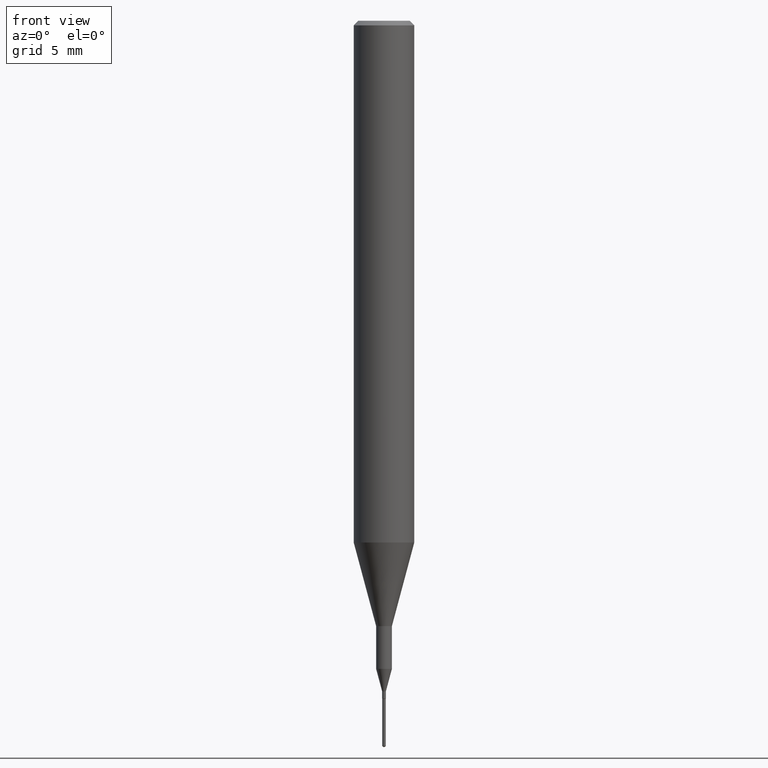
[diagram: clean part render]
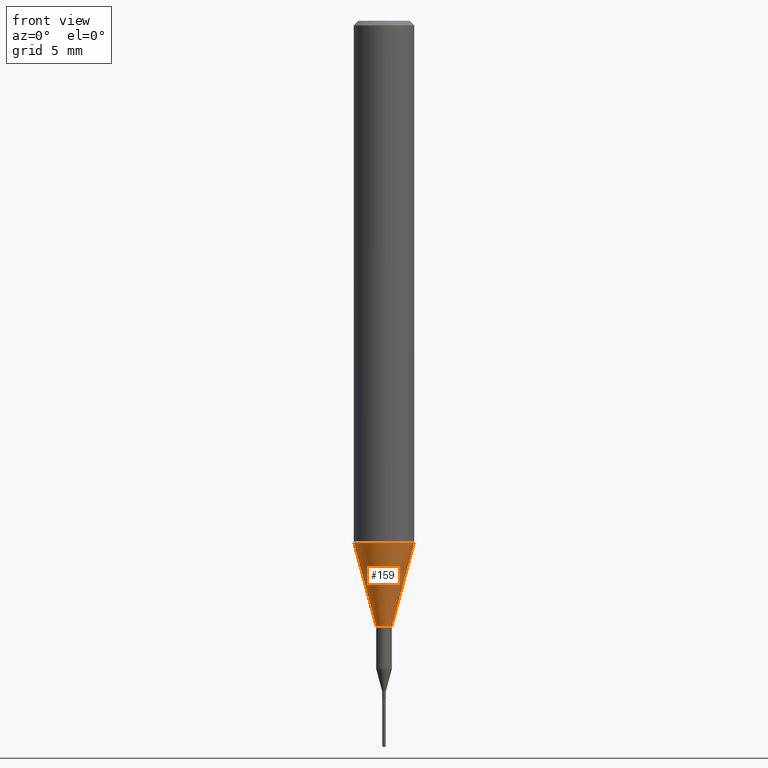
[diagram: same view with one face highlighted and labeled with its STEP entity id]
A machine part, front view. The second image highlights one B-rep face of the part: STEP entity #159.
In plain terms, the highlighted conical surface has half-angle 15 deg.
Its self-contained STEP definition (entity closure, byte-faithful):
#6 = AXIS2_PLACEMENT_3D ( 'NONE', #267, #35, #221 ) ;
#12 = EDGE_CURVE ( 'NONE', #282, #559, #17, .T. ) ;
#17 = CIRCLE ( 'NONE', #92, 0.06250000000000012490 ) ;
#35 = DIRECTION ( 'NONE',  ( -2.445468806185136597E-29, 3.491481338843145583E-15, 1.000000000000000000 ) ) ;
#36 = CARTESIAN_POINT ( 'NONE',  ( -0.01624999999999999709, -4.403123558425820763E-15, -1.250000000000000000 ) ) ;
#82 = DIRECTION ( 'NONE',  ( -2.445468806185136597E-29, 3.491481338843145583E-15, 1.000000000000000000 ) ) ;
#89 = VECTOR ( 'NONE', #366, 39.37007874015747433 ) ;
#92 = AXIS2_PLACEMENT_3D ( 'NONE', #200, #156, #340 ) ;
#99 = EDGE_CURVE ( 'NONE', #504, #389, #213, .T. ) ;
#107 = EDGE_LOOP ( 'NONE', ( #119, #253, #370, #373 ) ) ;
#111 = CARTESIAN_POINT ( 'NONE',  ( 0.01624999999999999709, -4.477824817066334148E-15, -1.250000000000000000 ) ) ;
#116 = VECTOR ( 'NONE', #139, 39.37007874015747433 ) ;
#119 = ORIENTED_EDGE ( 'NONE', *, *, #517, .F. ) ;
#139 = DIRECTION ( 'NONE',  ( 0.2588190451025214611, 1.565188264969621573E-15, 0.9659258262890682012 ) ) ;
#156 = DIRECTION ( 'NONE',  ( -2.445468806185136597E-29, 3.491481338843145583E-15, 1.000000000000000000 ) ) ;
#159 = ADVANCED_FACE ( 'NONE', ( #169 ), #269, .T. ) ;
#169 = FACE_OUTER_BOUND ( 'NONE', #107, .T. ) ;
#174 = CARTESIAN_POINT ( 'NONE',  ( -0.06250000000000012490, -3.317607122755211895E-15, -1.077392650149939346 ) ) ;
#200 = CARTESIAN_POINT ( 'NONE',  ( 2.634730117954813298E-29, -3.761696332605275695E-15, -1.077392650149939346 ) ) ;
#213 = CIRCLE ( 'NONE', #242, 0.01624999999999999709 ) ;
#221 = DIRECTION ( 'NONE',  ( 1.000000000000000000, -6.982962677686264344E-15, 0.000000000000000000 ) ) ;
#235 = CARTESIAN_POINT ( 'NONE',  ( 0.06250000000000012490, -4.198131499960668153E-15, -1.077392650149939346 ) ) ;
#242 = AXIS2_PLACEMENT_3D ( 'NONE', #583, #82, #552 ) ;
#253 = ORIENTED_EDGE ( 'NONE', *, *, #99, .T. ) ;
#267 = CARTESIAN_POINT ( 'NONE',  ( 2.634730117954813298E-29, -3.761696332605275695E-15, -1.077392650149939346 ) ) ;
#269 = CONICAL_SURFACE ( 'NONE', #6, 0.06250000000000012490, 0.2617993877991501295 ) ;
#282 = VERTEX_POINT ( 'NONE', #536 ) ;
#317 = LINE ( 'NONE', #494, #116 ) ;
#340 = DIRECTION ( 'NONE',  ( 1.000000000000000000, -6.982962677686264344E-15, 0.000000000000000000 ) ) ;
#360 = LINE ( 'NONE', #174, #89 ) ;
#366 = DIRECTION ( 'NONE',  ( -0.2588190451025214611, 5.211531920934551042E-15, 0.9659258262890682012 ) ) ;
#370 = ORIENTED_EDGE ( 'NONE', *, *, #493, .T. ) ;
#373 = ORIENTED_EDGE ( 'NONE', *, *, #12, .F. ) ;
#389 = VERTEX_POINT ( 'NONE', #111 ) ;
#493 = EDGE_CURVE ( 'NONE', #389, #559, #317, .T. ) ;
#494 = CARTESIAN_POINT ( 'NONE',  ( 0.06250000000000012490, -4.198131499960668153E-15, -1.077392650149939346 ) ) ;
#504 = VERTEX_POINT ( 'NONE', #36 ) ;
#517 = EDGE_CURVE ( 'NONE', #504, #282, #360, .T. ) ;
#536 = CARTESIAN_POINT ( 'NONE',  ( -0.06250000000000012490, -3.317607122755211895E-15, -1.077392650149939346 ) ) ;
#552 = DIRECTION ( 'NONE',  ( 1.000000000000000000, -6.982962677686288799E-15, 0.000000000000000000 ) ) ;
#559 = VERTEX_POINT ( 'NONE', #235 ) ;
#583 = CARTESIAN_POINT ( 'NONE',  ( 3.056836007731421306E-29, -4.364351673553932471E-15, -1.250000000000000000 ) ) ;